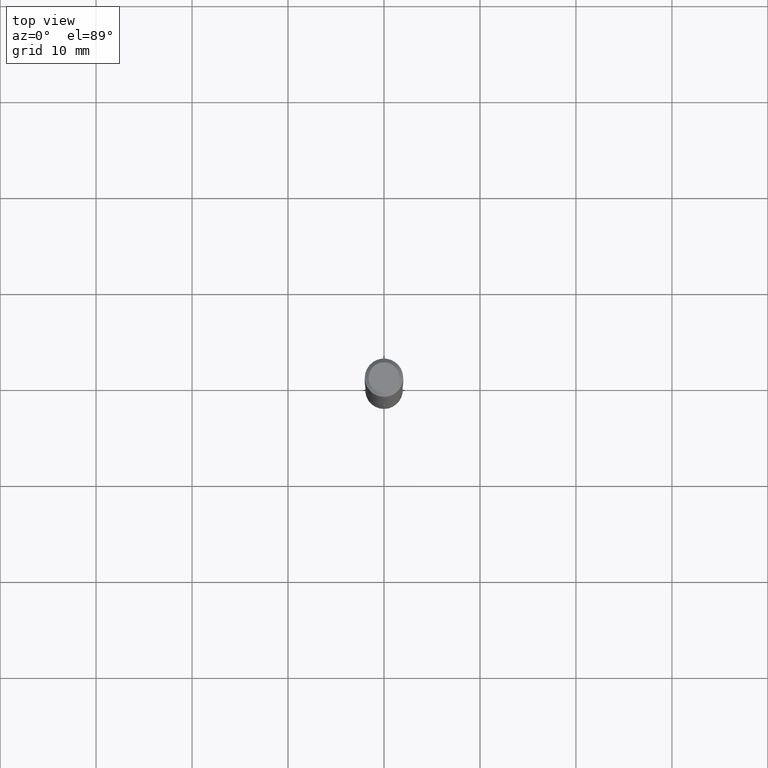
[diagram: clean part render]
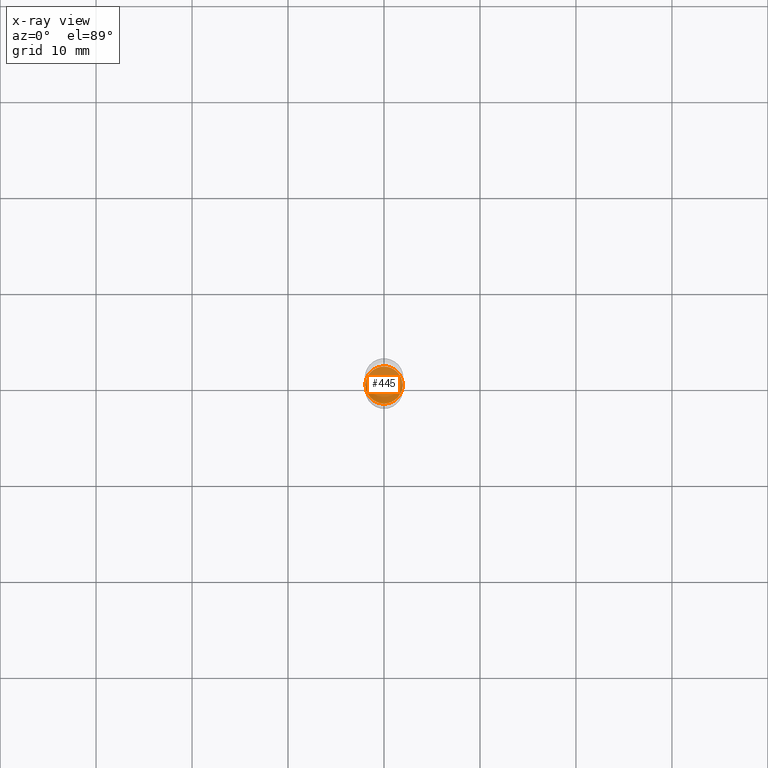
[diagram: x-ray — body ghosted, one internal face saturated and labeled with its STEP entity id]
A machine part, top view, then the same camera in x-ray: the body is ghosted and one INTERNAL B-rep face — a face not visible from any outside direction — is saturated and labeled: STEP entity #445.
In plain terms, the highlighted planar face has unit normal (-0, 0, 1).
Its self-contained STEP definition (entity closure, byte-faithful):
#1 = DIRECTION ( 'NONE',  ( 1.000000000000000000, -6.982962677686265133E-15, 0.000000000000000000 ) ) ;
#5 = DIRECTION ( 'NONE',  ( -2.445468806185136597E-29, 3.491481338843145583E-15, 1.000000000000000000 ) ) ;
#28 = CARTESIAN_POINT ( 'NONE',  ( 4.313317880349343751E-29, -6.158274785451540536E-15, -1.763799999999999812 ) ) ;
#35 = CIRCLE ( 'NONE', #222, 0.07625000000000001221 ) ;
#62 = ORIENTED_EDGE ( 'NONE', *, *, #107, .F. ) ;
#71 = CIRCLE ( 'NONE', #383, 0.07625000000000001221 ) ;
#88 = DIRECTION ( 'NONE',  ( -2.445468806185136597E-29, 3.491481338843145583E-15, 1.000000000000000000 ) ) ;
#107 = EDGE_CURVE ( 'NONE', #269, #177, #35, .T. ) ;
#150 = DIRECTION ( 'NONE',  ( 1.000000000000000000, -6.982962677686265922E-15, 4.876176775795935793E-29 ) ) ;
#177 = VERTEX_POINT ( 'NONE', #266 ) ;
#181 = PLANE ( 'NONE',  #475 ) ;
#222 = AXIS2_PLACEMENT_3D ( 'NONE', #490, #5, #1 ) ;
#229 = EDGE_CURVE ( 'NONE', #177, #269, #71, .T. ) ;
#258 = FACE_OUTER_BOUND ( 'NONE', #400, .T. ) ;
#266 = CARTESIAN_POINT ( 'NONE',  ( 0.07625000000000001221, -6.690725689625118057E-15, -1.763799999999999812 ) ) ;
#269 = VERTEX_POINT ( 'NONE', #436 ) ;
#322 = DIRECTION ( 'NONE',  ( 1.000000000000000000, -6.982962677686265133E-15, 0.000000000000000000 ) ) ;
#356 = CARTESIAN_POINT ( 'NONE',  ( 4.313317880349343751E-29, -6.158274785451540536E-15, -1.763799999999999812 ) ) ;
#360 = ORIENTED_EDGE ( 'NONE', *, *, #229, .F. ) ;
#383 = AXIS2_PLACEMENT_3D ( 'NONE', #356, #88, #322 ) ;
#400 = EDGE_LOOP ( 'NONE', ( #360, #62 ) ) ;
#408 = DIRECTION ( 'NONE',  ( -2.438088387897960049E-29, 3.491481338843145188E-15, 1.000000000000000000 ) ) ;
#436 = CARTESIAN_POINT ( 'NONE',  ( -0.07625000000000001221, -5.613836722260352659E-15, -1.763799999999999812 ) ) ;
#445 = ADVANCED_FACE ( 'NONE', ( #258 ), #181, .F. ) ;
#475 = AXIS2_PLACEMENT_3D ( 'NONE', #28, #408, #150 ) ;
#490 = CARTESIAN_POINT ( 'NONE',  ( 4.313317880349343751E-29, -6.158274785451540536E-15, -1.763799999999999812 ) ) ;